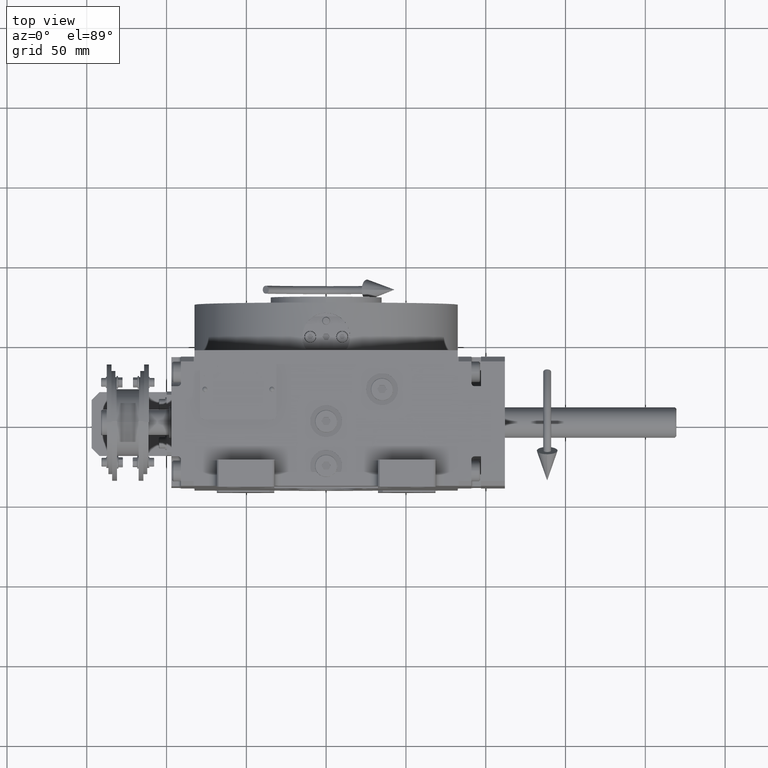
[diagram: clean part render]
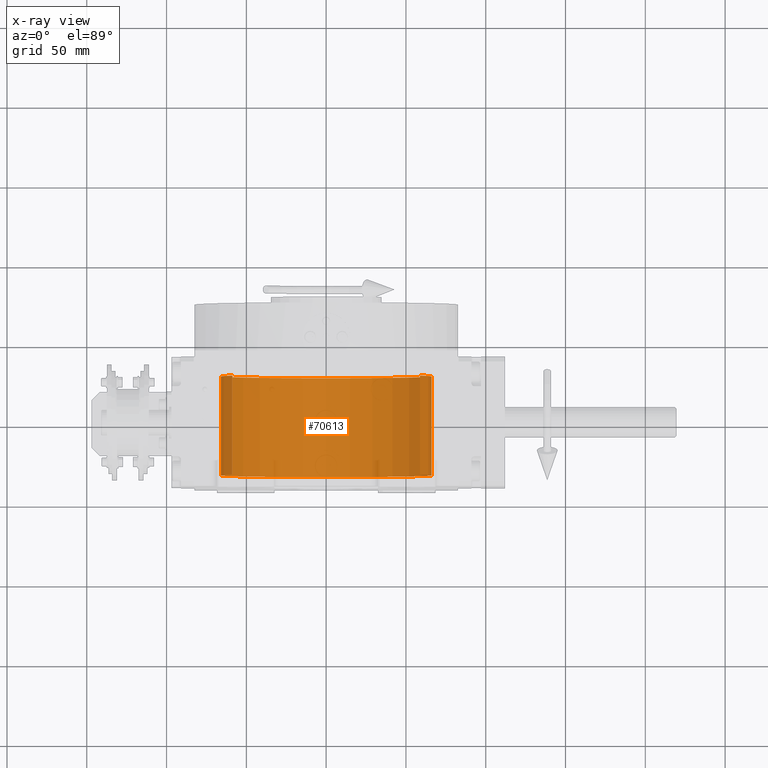
[diagram: x-ray — body ghosted, one internal face saturated and labeled with its STEP entity id]
A machine part, top view, then the same camera in x-ray: the body is ghosted and one INTERNAL B-rep face — a face not visible from any outside direction — is saturated and labeled: STEP entity #70613.
In plain terms, the highlighted cylindrical surface (partial cylindrical patch) has radius 66 mm, axis along (0, 1, 0).
Its self-contained STEP definition (entity closure, byte-faithful):
#615 = CARTESIAN_POINT ( 'NONE',  ( 58.78775382679628336, 30.00000000000001421, 30.00000000000000000 ) ) ;
#1129 = AXIS2_PLACEMENT_3D ( 'NONE', #31461, #37955, #79169 ) ;
#2293 = CARTESIAN_POINT ( 'NONE',  ( -58.78775382679628336, 30.00000000000001421, 30.00000000000000000 ) ) ;
#3466 = VERTEX_POINT ( 'NONE', #40554 ) ;
#4292 = DIRECTION ( 'NONE',  ( 0.000000000000000000, 0.000000000000000000, 1.000000000000000000 ) ) ;
#9540 = CARTESIAN_POINT ( 'NONE',  ( -58.78775382679628336, 98.15000000000000568, 30.00000000000000000 ) ) ;
#9685 = VECTOR ( 'NONE', #35074, 1000.000000000000000 ) ;
#11740 = CARTESIAN_POINT ( 'NONE',  ( 58.78775382679628336, -31.99999999999998579, 30.00000000000000000 ) ) ;
#12933 = ORIENTED_EDGE ( 'NONE', *, *, #39892, .T. ) ;
#14281 = CIRCLE ( 'NONE', #43429, 66.00000000000000000 ) ;
#16517 = EDGE_LOOP ( 'NONE', ( #25634, #38559, #29693, #12933 ) ) ;
#18530 = AXIS2_PLACEMENT_3D ( 'NONE', #72556, #52596, #20478 ) ;
#20478 = DIRECTION ( 'NONE',  ( 0.000000000000000000, 0.000000000000000000, 1.000000000000000000 ) ) ;
#22984 = LINE ( 'NONE', #9540, #33983 ) ;
#25634 = ORIENTED_EDGE ( 'NONE', *, *, #43050, .T. ) ;
#28563 = CARTESIAN_POINT ( 'NONE',  ( 58.78775382679628336, 98.15000000000000568, 30.00000000000000000 ) ) ;
#29462 = VERTEX_POINT ( 'NONE', #615 ) ;
#29693 = ORIENTED_EDGE ( 'NONE', *, *, #58667, .T. ) ;
#31461 = CARTESIAN_POINT ( 'NONE',  ( 0.000000000000000000, 98.15000000000000568, 0.000000000000000000 ) ) ;
#33983 = VECTOR ( 'NONE', #76781, 1000.000000000000000 ) ;
#35074 = DIRECTION ( 'NONE',  ( -0.000000000000000000, 1.000000000000000000, -0.000000000000000000 ) ) ;
#36028 = CARTESIAN_POINT ( 'NONE',  ( 0.000000000000000000, 30.00000000000001421, 0.000000000000000000 ) ) ;
#37955 = DIRECTION ( 'NONE',  ( -0.000000000000000000, 1.000000000000000000, -0.000000000000000000 ) ) ;
#38559 = ORIENTED_EDGE ( 'NONE', *, *, #78320, .F. ) ;
#39892 = EDGE_CURVE ( 'NONE', #29462, #57608, #14281, .T. ) ;
#40554 = CARTESIAN_POINT ( 'NONE',  ( -58.78775382679628336, -31.99999999999998579, 30.00000000000000000 ) ) ;
#43050 = EDGE_CURVE ( 'NONE', #57608, #3466, #22984, .T. ) ;
#43429 = AXIS2_PLACEMENT_3D ( 'NONE', #36028, #62490, #4292 ) ;
#52596 = DIRECTION ( 'NONE',  ( -0.000000000000000000, 1.000000000000000000, -0.000000000000000000 ) ) ;
#57608 = VERTEX_POINT ( 'NONE', #2293 ) ;
#58667 = EDGE_CURVE ( 'NONE', #81118, #29462, #81507, .T. ) ;
#62490 = DIRECTION ( 'NONE',  ( -0.000000000000000000, 1.000000000000000000, -0.000000000000000000 ) ) ;
#64264 = CIRCLE ( 'NONE', #18530, 66.00000000000000000 ) ;
#65293 = FACE_OUTER_BOUND ( 'NONE', #16517, .T. ) ;
#70613 = ADVANCED_FACE ( 'NONE', ( #65293 ), #72666, .F. ) ;
#72556 = CARTESIAN_POINT ( 'NONE',  ( 0.000000000000000000, -31.99999999999998579, 0.000000000000000000 ) ) ;
#72666 = CYLINDRICAL_SURFACE ( 'NONE', #1129, 66.00000000000000000 ) ;
#76781 = DIRECTION ( 'NONE',  ( 0.000000000000000000, -1.000000000000000000, 0.000000000000000000 ) ) ;
#78320 = EDGE_CURVE ( 'NONE', #81118, #3466, #64264, .T. ) ;
#79169 = DIRECTION ( 'NONE',  ( 0.000000000000000000, 0.000000000000000000, 1.000000000000000000 ) ) ;
#81118 = VERTEX_POINT ( 'NONE', #11740 ) ;
#81507 = LINE ( 'NONE', #28563, #9685 ) ;